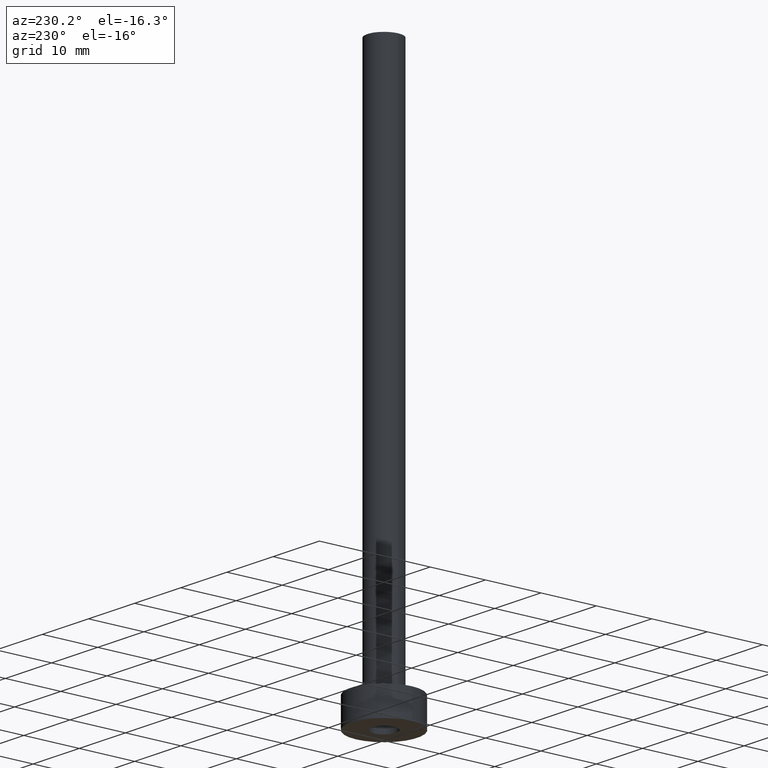
[diagram: clean part render]
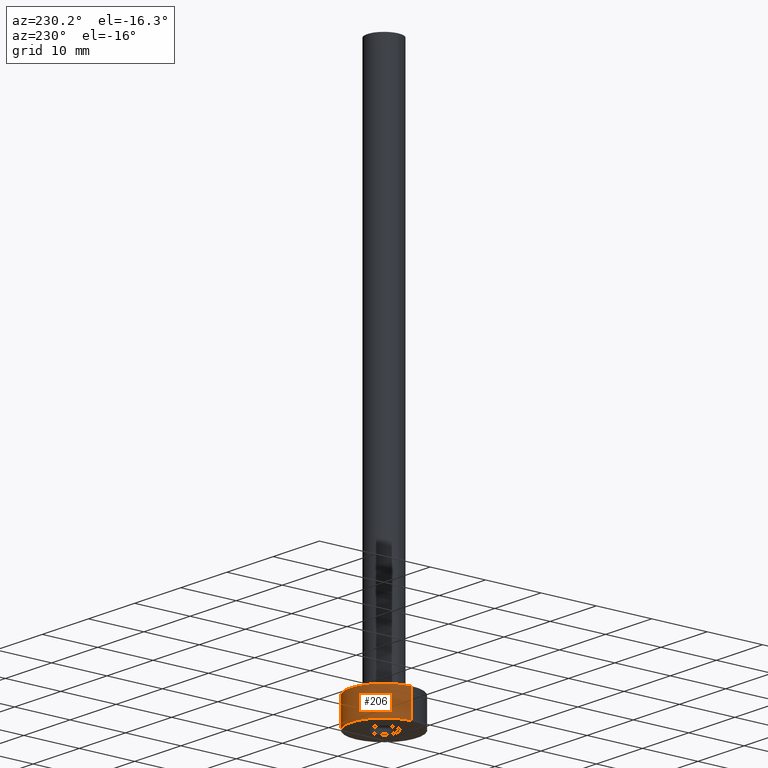
[diagram: same view with one face highlighted and labeled with its STEP entity id]
A machine part, auxiliary view. The second image highlights one B-rep face of the part: STEP entity #206.
In plain terms, the highlighted cylindrical surface (partial cylindrical patch) has radius 6 mm, axis along (-0, -0, -1).
Its self-contained STEP definition (entity closure, byte-faithful):
#11 = ORIENTED_EDGE ( 'NONE', *, *, #262, .T. ) ;
#16 = DIRECTION ( 'NONE',  ( 1.000000000000000000, 0.000000000000000000, 0.000000000000000000 ) ) ;
#22 = CYLINDRICAL_SURFACE ( 'NONE', #154, 6.000000000000000888 ) ;
#33 = EDGE_CURVE ( 'NONE', #360, #375, #194, .T. ) ;
#58 = CIRCLE ( 'NONE', #327, 6.000000000000000888 ) ;
#61 = CARTESIAN_POINT ( 'NONE',  ( 6.000000000000000888, 7.347880794884120722E-16, 5.000000000000000000 ) ) ;
#84 = ORIENTED_EDGE ( 'NONE', *, *, #160, .F. ) ;
#89 = DIRECTION ( 'NONE',  ( -0.000000000000000000, -0.000000000000000000, -1.000000000000000000 ) ) ;
#92 = DIRECTION ( 'NONE',  ( 0.000000000000000000, 0.000000000000000000, 1.000000000000000000 ) ) ;
#94 = CARTESIAN_POINT ( 'NONE',  ( -6.000000000000000888, 0.000000000000000000, 0.000000000000000000 ) ) ;
#96 = CARTESIAN_POINT ( 'NONE',  ( -6.000000000000000888, 0.000000000000000000, 5.000000000000000000 ) ) ;
#105 = EDGE_LOOP ( 'NONE', ( #84, #11, #144, #112 ) ) ;
#112 = ORIENTED_EDGE ( 'NONE', *, *, #33, .F. ) ;
#120 = DIRECTION ( 'NONE',  ( -0.000000000000000000, -0.000000000000000000, -1.000000000000000000 ) ) ;
#144 = ORIENTED_EDGE ( 'NONE', *, *, #256, .T. ) ;
#154 = AXIS2_PLACEMENT_3D ( 'NONE', #348, #89, #207 ) ;
#160 = EDGE_CURVE ( 'NONE', #367, #360, #362, .T. ) ;
#180 = CARTESIAN_POINT ( 'NONE',  ( 6.000000000000000888, 7.347880794884120722E-16, 0.000000000000000000 ) ) ;
#193 = CARTESIAN_POINT ( 'NONE',  ( 0.000000000000000000, 0.000000000000000000, 0.000000000000000000 ) ) ;
#194 = LINE ( 'NONE', #282, #225 ) ;
#206 = ADVANCED_FACE ( 'NONE', ( #274 ), #22, .T. ) ;
#207 = DIRECTION ( 'NONE',  ( -1.000000000000000000, 0.000000000000000000, 0.000000000000000000 ) ) ;
#218 = VECTOR ( 'NONE', #413, 1000.000000000000000 ) ;
#225 = VECTOR ( 'NONE', #120, 1000.000000000000000 ) ;
#243 = LINE ( 'NONE', #344, #218 ) ;
#256 = EDGE_CURVE ( 'NONE', #397, #375, #58, .T. ) ;
#262 = EDGE_CURVE ( 'NONE', #367, #397, #243, .T. ) ;
#265 = DIRECTION ( 'NONE',  ( 0.000000000000000000, 0.000000000000000000, 1.000000000000000000 ) ) ;
#274 = FACE_OUTER_BOUND ( 'NONE', #105, .T. ) ;
#282 = CARTESIAN_POINT ( 'NONE',  ( -6.000000000000000888, 0.000000000000000000, 5.000000000000000000 ) ) ;
#300 = DIRECTION ( 'NONE',  ( 1.000000000000000000, 0.000000000000000000, 0.000000000000000000 ) ) ;
#327 = AXIS2_PLACEMENT_3D ( 'NONE', #193, #92, #16 ) ;
#344 = CARTESIAN_POINT ( 'NONE',  ( 6.000000000000000888, 7.347880794884120722E-16, 5.000000000000000000 ) ) ;
#348 = CARTESIAN_POINT ( 'NONE',  ( 0.000000000000000000, 0.000000000000000000, 5.000000000000000000 ) ) ;
#360 = VERTEX_POINT ( 'NONE', #96 ) ;
#362 = CIRCLE ( 'NONE', #427, 6.000000000000000888 ) ;
#364 = CARTESIAN_POINT ( 'NONE',  ( 0.000000000000000000, 0.000000000000000000, 5.000000000000000000 ) ) ;
#367 = VERTEX_POINT ( 'NONE', #61 ) ;
#375 = VERTEX_POINT ( 'NONE', #94 ) ;
#397 = VERTEX_POINT ( 'NONE', #180 ) ;
#413 = DIRECTION ( 'NONE',  ( -0.000000000000000000, -0.000000000000000000, -1.000000000000000000 ) ) ;
#427 = AXIS2_PLACEMENT_3D ( 'NONE', #364, #265, #300 ) ;